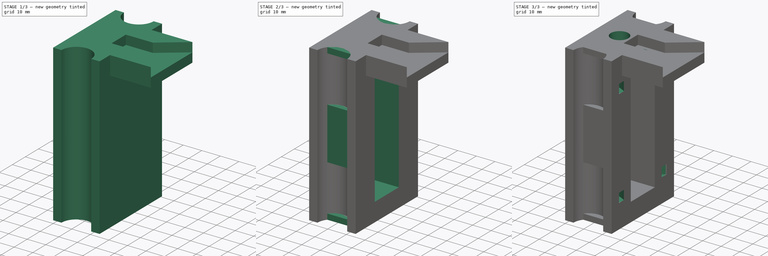
[diagram: build sequence overview — one tinted view per stage of 3, left to right]
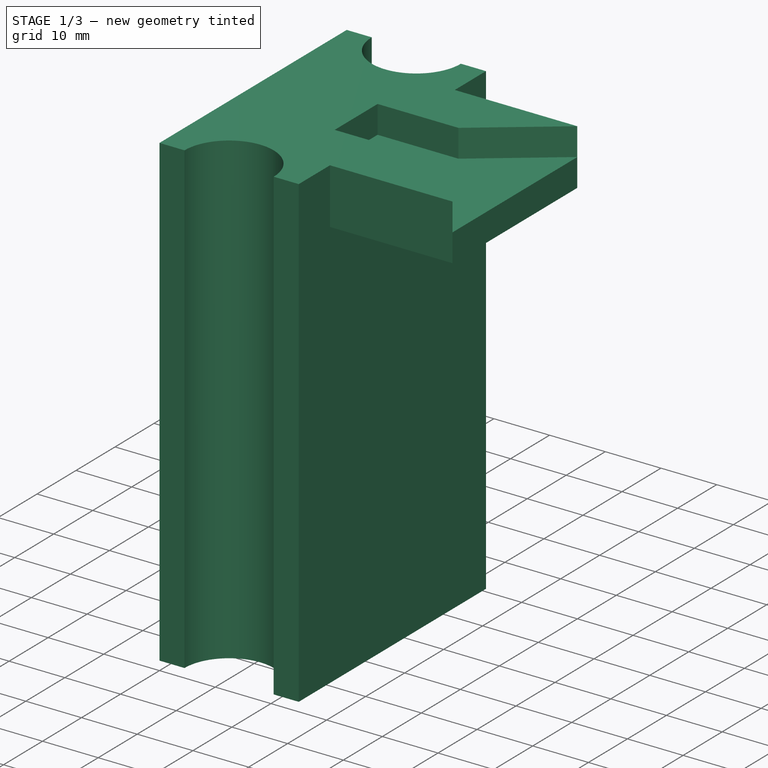
[diagram: stage 1 of 3 — iso view after this stage's code; geometry added in this stage tinted green]
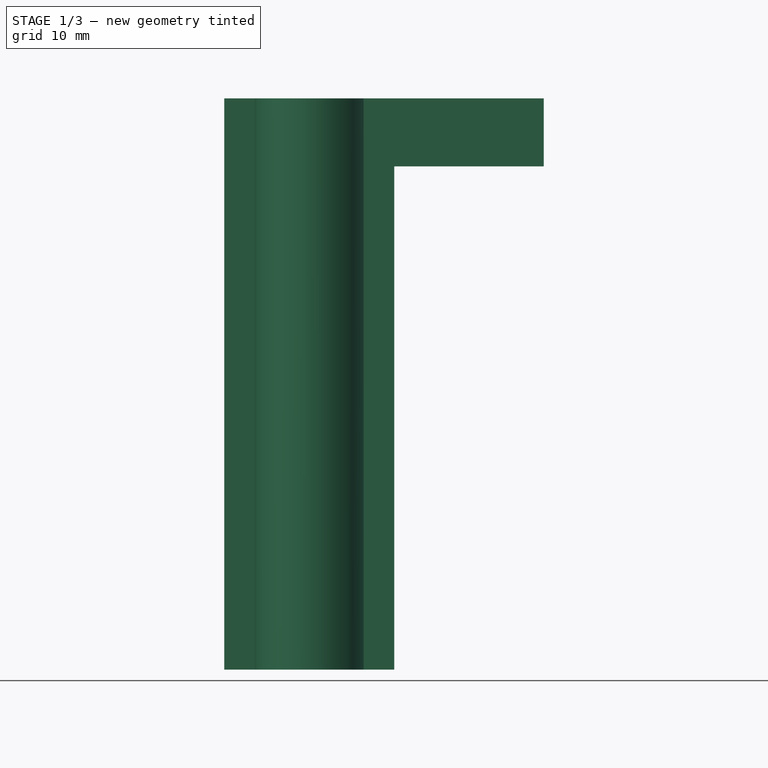
[diagram: stage 1 of 3 — front view after this stage's code; geometry added in this stage tinted green]
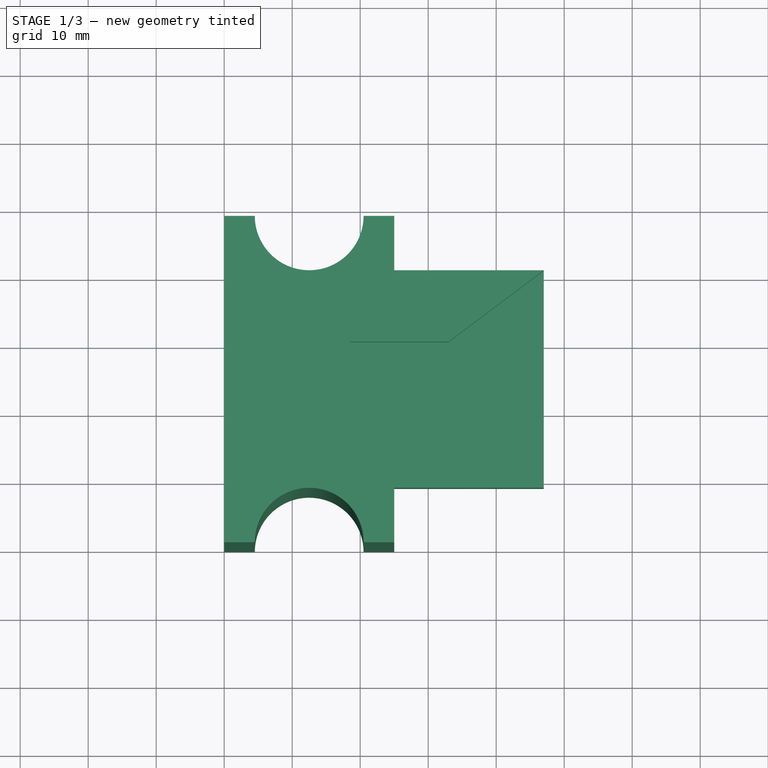
[diagram: stage 1 of 3 — top view after this stage's code; geometry added in this stage tinted green]
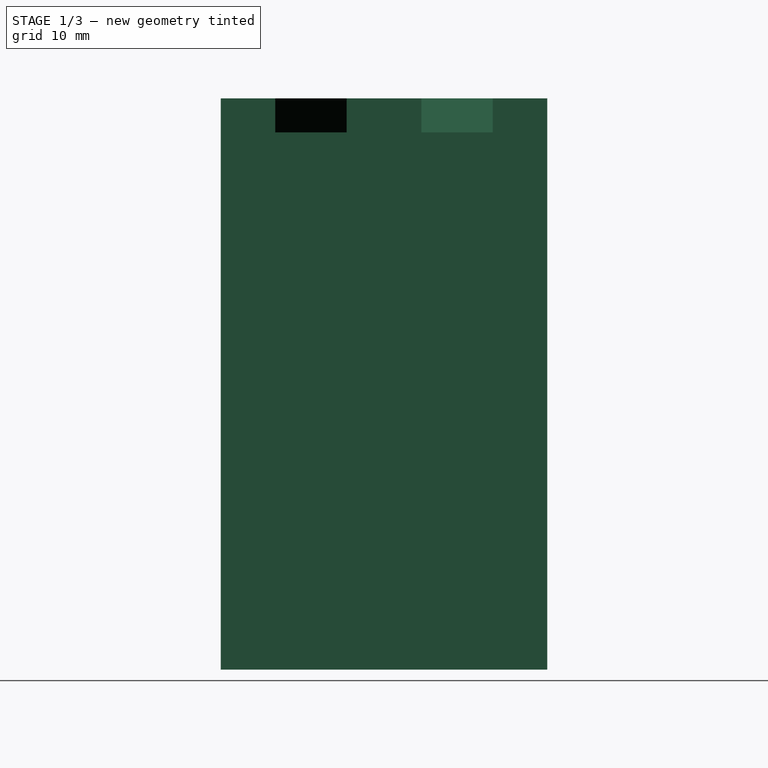
[diagram: stage 1 of 3 — right view after this stage's code; geometry added in this stage tinted green]
FCSTD DOCUMENT  (FreeCAD 0.16R5231 (Git))
Label: BuildPlatformMountingP3
License: All rights reserved
LicenseURL: http://en.wikipedia.org/wiki/All_rights_reserved
objects: Sketcher::SketchObject×7, PartDesign::Pocket×5, PartDesign::Pad×2, Part::Feature×1, Part::Cut×1
note: 23 computed .brp shape members not serialized (recipe doc carries the construction recipe); baked Part::Feature solids carry a one-line shape summary decoded from their .brp

FEATURE [Sketcher::SketchObject] Sketch
  sketch-geometry (13):
    g0: LineSegment StartX=25 StartY=40 StartZ=0 EndX=47 EndY=40 EndZ=0
    g1: LineSegment StartX=47 StartY=40 StartZ=0 EndX=47 EndY=8 EndZ=0
    g2: LineSegment StartX=47 StartY=8 StartZ=0 EndX=25 EndY=8 EndZ=0
    g3: ArcOfCircle CenterX=12.5 CenterY=0 CenterZ=0 NormalX=0 NormalY=0 NormalZ=1 Radius=8 StartAngle=0 EndAngle=3.14159
    g4: ArcOfCircle CenterX=12.5 CenterY=48 CenterZ=0 NormalX=0 NormalY=0 NormalZ=1 Radius=8 StartAngle=3.14159 EndAngle=6.28319
    g5: LineSegment StartX=20.5 StartY=0 StartZ=0 EndX=25 EndY=0 EndZ=0
    g6: LineSegment StartX=4.5 StartY=0 StartZ=0 EndX=0 EndY=0 EndZ=0
    g7: LineSegment StartX=4.5 StartY=48 StartZ=0 EndX=0 EndY=48 EndZ=0
    g8: LineSegment StartX=25 StartY=8 StartZ=0 EndX=25 EndY=0 EndZ=0
    g9: LineSegment StartX=20.5 StartY=48 StartZ=0 EndX=25 EndY=48 EndZ=0
    g10: LineSegment StartX=25 StartY=48 StartZ=0 EndX=25 EndY=40 EndZ=0
    g11: LineSegment StartX=0 StartY=48 StartZ=0 EndX=0 EndY=0 EndZ=0
    g12: LineSegment [constr] StartX=25 StartY=40 StartZ=0 EndX=25 EndY=8 EndZ=0
  constraints (39):
    c: Equal(g3,g4)
    c: Radius(g3) = 8
    c: Coincident(g6,g11)
    c: Coincident(g3,g6)
    c: Coincident(g7,g11)
    c: Coincident(g4,g7)
    c: Coincident(g4,g9)
    c: Coincident(g9,g10)
    c: Coincident(g0,g10)
    c: Coincident(g0,g1)
    c: Coincident(g1,g2)
    c: Coincident(g2,g8)
    c: Coincident(g5,g8)
    c: Coincident(g3,g5)
    c: DistanceY(g1) = -32
    c: DistanceX(g2) = -22
    c: Coincident(g12,g0)
    c: Coincident(g12,g2)
    c: Vertical(g12)
    c: Vertical(g11)
    c: Vertical(g1)
    c: Horizontal(g0)
    c: Horizontal(g2)
    c: Horizontal(g6)
    c: Horizontal(g5)
    c: Horizontal(g7)
    c: Horizontal(g9)
    c: Perpendicular(g3,g5)
    c: Perpendicular(g3,g6)
    c: Perpendicular(g4,g7)
    c: Perpendicular(g4,g9)
    c: Tangent(g4,g0)
    c: Tangent(g3,g2)
    c: DistanceX(g6,g5) = 25
    c: Equal(g5,g7)
    c: Equal(g7,g9)
    c: Equal(g9,g6)
    c: Vertical(g8)
    c: Coincident(g6,g-1)
FEATURE [PartDesign::Pad] Pad
  Length = 84
  Length2 = 100
  Sketch = -> Sketch
  Type = 0
FEATURE [Sketcher::SketchObject] Sketch001
  ExternalGeometry = -> [Pad]
  Placement = pos=(0,0,0) rot=(1,0,0;3.14159rad)
  Support = -> Pad [Face13]
  sketch-geometry (4):
    g0: LineSegment StartX=25 StartY=-40 StartZ=0 EndX=47 EndY=-40 EndZ=0
    g1: LineSegment StartX=47 StartY=-40 StartZ=0 EndX=47 EndY=-8 EndZ=0
    g2: LineSegment StartX=47 StartY=-8 StartZ=0 EndX=25 EndY=-8 EndZ=0
    g3: LineSegment StartX=25 StartY=-8 StartZ=0 EndX=25 EndY=-40 EndZ=0
  constraints (10):
    c: Coincident(g0,g1)
    c: Coincident(g1,g2)
    c: Coincident(g2,g3)
    c: Coincident(g3,g0)
    c: Horizontal(g0)
    c: Horizontal(g2)
    c: Vertical(g1)
    c: Vertical(g3)
    c: Coincident(g0,g-3)
    c: Coincident(g1,g-4)
FEATURE [Part::Feature] Fusion002001  label="Fusion003"
  shape: bbox 38.17 x 51 x 58 mm, 24 faces, 4 solids (baked)
FEATURE [PartDesign::Pocket] Pocket
  Length = 74
  Sketch = -> Sketch001
  Type = 0
FEATURE [Sketcher::SketchObject] Sketch002
  ExternalGeometry = -> [Pocket]
  Placement = pos=(0,0,84) rot=(0,0,1;0rad)
  Support = -> Pocket [Face5]
  sketch-geometry (8):
    g0: LineSegment StartX=47 StartY=8 StartZ=0 EndX=33.0001 EndY=18.5 EndZ=0
    g1: LineSegment StartX=47 StartY=40 StartZ=0 EndX=33.0001 EndY=29.5 EndZ=0
    g2: LineSegment [constr] StartX=33.0001 StartY=29.5 StartZ=0 EndX=33.0001 EndY=18.5 EndZ=0
    g3: LineSegment StartX=47 StartY=8 StartZ=0 EndX=47 EndY=40 EndZ=0
    g4: LineSegment [constr] StartX=12.5 StartY=0 StartZ=0 EndX=12.5 EndY=48 EndZ=0
    g5: LineSegment StartX=18.5 StartY=29.5 StartZ=0 EndX=33.0001 EndY=29.5 EndZ=0
    g6: LineSegment StartX=33.0001 StartY=18.5 StartZ=0 EndX=18.5 EndY=18.5 EndZ=0
    g7: LineSegment StartX=18.5 StartY=18.5 StartZ=0 EndX=18.5 EndY=29.5 EndZ=0
  constraints (20):
    c: Coincident(g2,g1)
    c: Coincident(g2,g0)
    c: Vertical(g2)
    c: DistanceY(g2) = -11
    c: Coincident(g3,g0)
    c: Coincident(g3,g1)
    c: Coincident(g4,g-5)
    c: Coincident(g4,g-6)
    c: Coincident(g7,g5)
    c: Horizontal(g5)
    c: Horizontal(g6)
    c: Vertical(g7)
    c: Angle(g3,g0) = 0.927293
    c: Angle(g1,g3) = 0.927293
    c: Coincident(g0,g-4)
    c: Coincident(g1,g-3)
    c: Coincident(g6,g0)
    c: Coincident(g5,g1)
    c: Coincident(g6,g7)
    c: DistanceX(g4,g6) = 6
FEATURE [PartDesign::Pocket] Pocket001
  Length = 5
  Sketch = -> Sketch002
  Type = 0
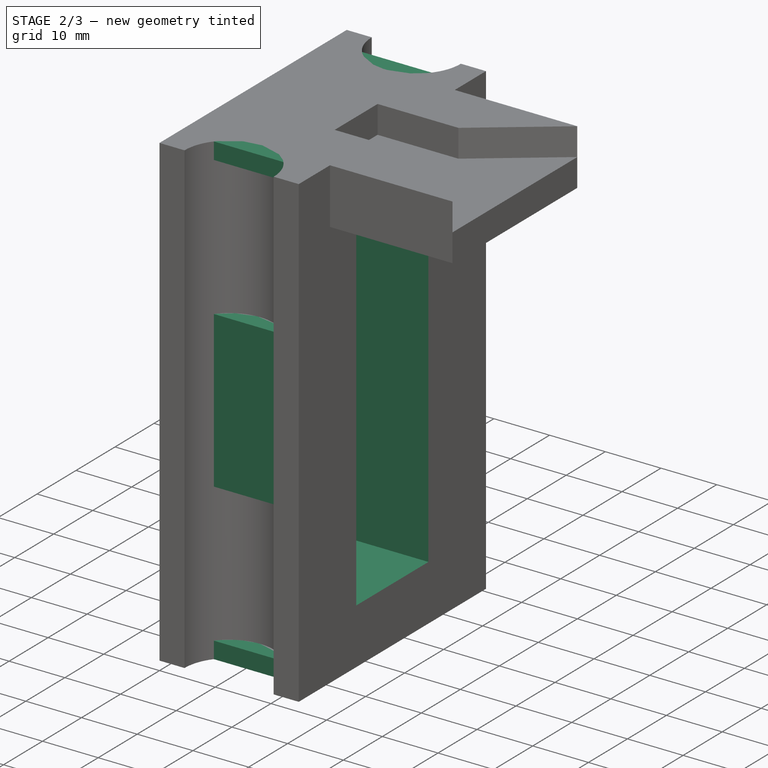
[diagram: stage 2 of 3 — iso view after this stage's code; geometry added in this stage tinted green]
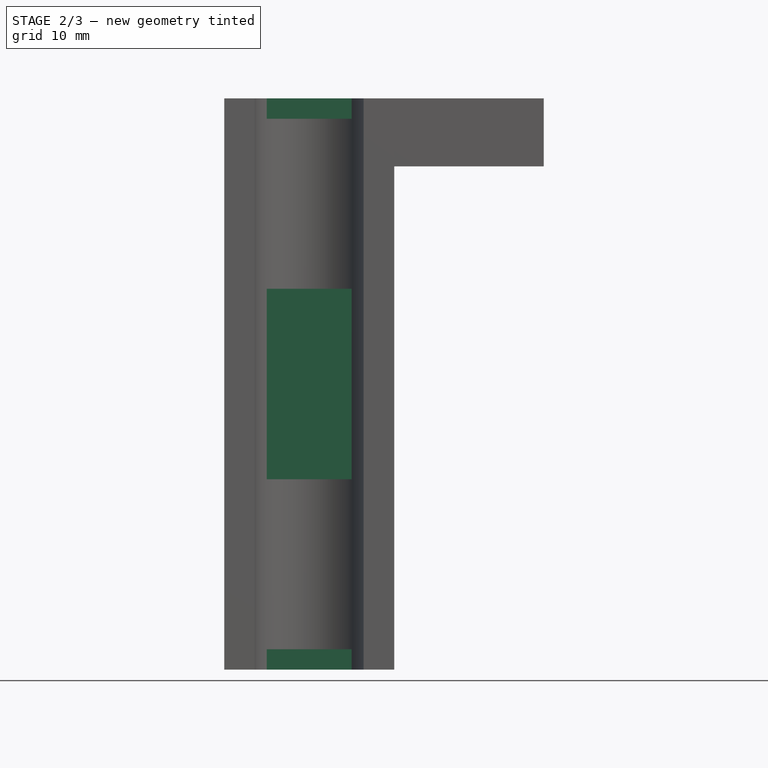
[diagram: stage 2 of 3 — front view after this stage's code; geometry added in this stage tinted green]
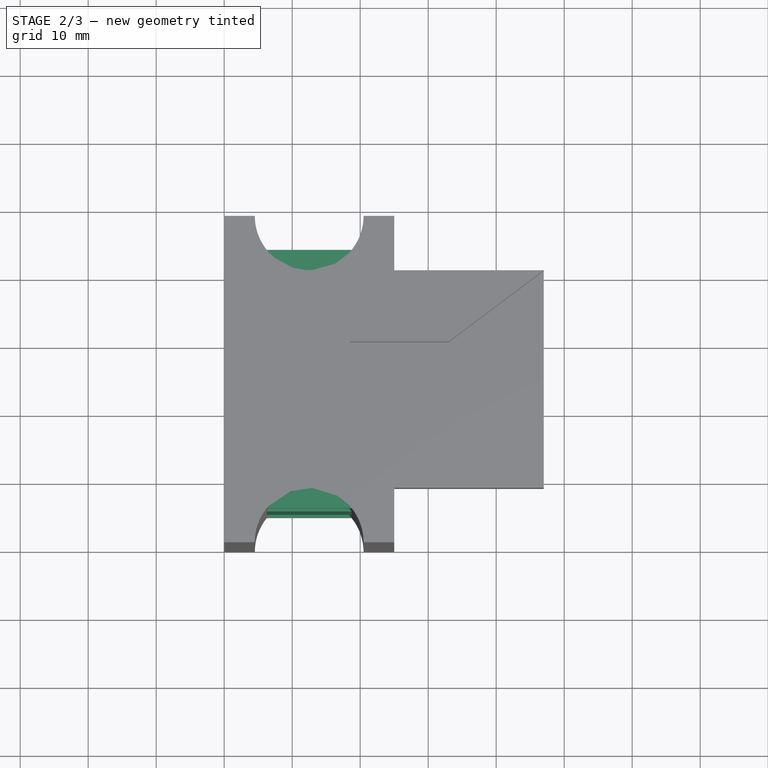
[diagram: stage 2 of 3 — top view after this stage's code; geometry added in this stage tinted green]
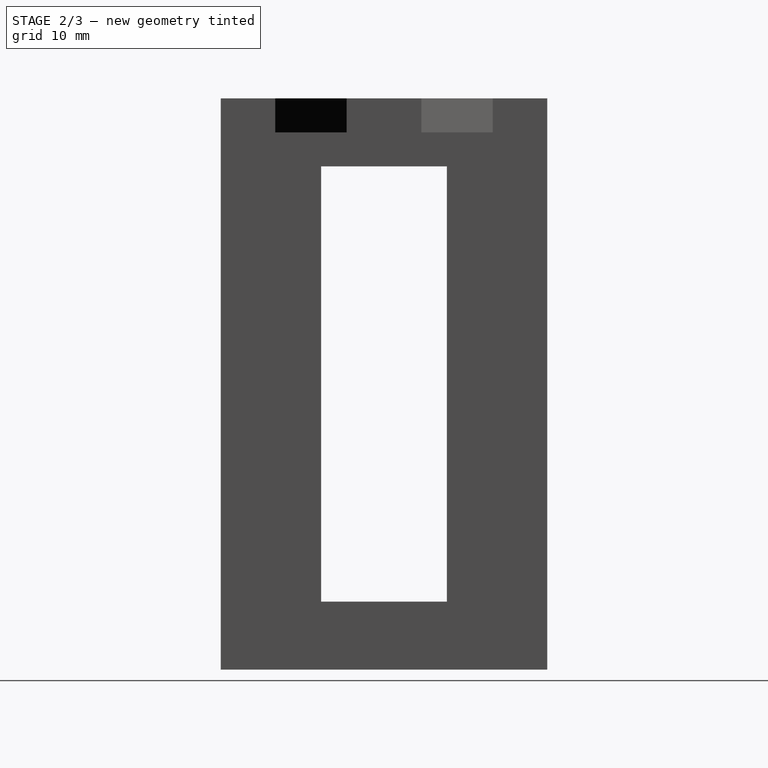
[diagram: stage 2 of 3 — right view after this stage's code; geometry added in this stage tinted green]
FEATURE [Sketcher::SketchObject] Sketch003
  ExternalGeometry = -> [Pocket001]
  Placement = pos=(0,0,0) rot=(0.57735,-0.57735,-0.57735;2.0944rad)
  Support = -> Pocket001 [Face6]
  sketch-geometry (5):
    g0: LineSegment StartX=-33.25 StartY=74 StartZ=0 EndX=-14.75 EndY=74 EndZ=0
    g1: LineSegment StartX=-14.75 StartY=74 StartZ=0 EndX=-14.75 EndY=10 EndZ=0
    g2: LineSegment StartX=-14.75 StartY=10 StartZ=0 EndX=-33.25 EndY=10 EndZ=0
    g3: LineSegment StartX=-33.25 StartY=10 StartZ=0 EndX=-33.25 EndY=74 EndZ=0
    g4: LineSegment [constr] StartX=-24 StartY=84 StartZ=0 EndX=-24 EndY=0 EndZ=0
  constraints (15):
    c: Coincident(g0,g1)
    c: Coincident(g1,g2)
    c: Coincident(g2,g3)
    c: Coincident(g3,g0)
    c: Horizontal(g0)
    c: Horizontal(g2)
    c: Vertical(g1)
    c: Vertical(g3)
    c: Vertical(g4)
    c: Symmetric(g0,g0,g4)
    c: DistanceX(g2) = -18.5
    c: DistanceY(g-1,g1) = 10
    c: Symmetric(g-3,g-3,g4)
    c: PointOnObject(g4,g-4)
    c: DistanceY(g0,g-3) = 10
FEATURE [PartDesign::Pocket] Pocket002
  Length = 25
  Sketch = -> Sketch003
  Type = 0
FEATURE [Sketcher::SketchObject] Sketch005
  ExternalGeometry = -> [Pocket002]
  Placement = pos=(0,0,0) rot=(0.57735,-0.57735,-0.57735;2.0944rad)
  Support = -> Pocket002 [Face6]
  sketch-geometry (27):
    g0: LineSegment [constr] StartX=-8 StartY=84 StartZ=0 EndX=-8 EndY=0 EndZ=0
    g1: LineSegment [constr] StartX=-40 StartY=84 StartZ=0 EndX=-40 EndY=0 EndZ=0
    g2: LineSegment StartX=-8 StartY=84 StartZ=0 EndX=-5 EndY=84 EndZ=0
    g3: LineSegment StartX=-5 StartY=84 StartZ=0 EndX=-5 EndY=81 EndZ=0
    g4: LineSegment StartX=-5 StartY=81 StartZ=0 EndX=-8 EndY=81 EndZ=0
    g5: LineSegment StartX=-8 StartY=81 StartZ=0 EndX=-8 EndY=84 EndZ=0
    g6: LineSegment StartX=-40 StartY=84 StartZ=0 EndX=-43 EndY=84 EndZ=0
    g7: LineSegment StartX=-43 StartY=84 StartZ=0 EndX=-43 EndY=81 EndZ=0
    g8: LineSegment StartX=-43 StartY=81 StartZ=0 EndX=-40 EndY=81 EndZ=0
    g9: LineSegment StartX=-40 StartY=81 StartZ=0 EndX=-40 EndY=84 EndZ=0
    g10: LineSegment StartX=-8 StartY=56 StartZ=0 EndX=-5 EndY=56 EndZ=0
    g11: LineSegment StartX=-5 StartY=56 StartZ=0 EndX=-5 EndY=28 EndZ=0
    g12: LineSegment StartX=-5 StartY=28 StartZ=0 EndX=-8 EndY=28 EndZ=0
    g13: LineSegment StartX=-8 StartY=28 StartZ=0 EndX=-8 EndY=56 EndZ=0
    g14: LineSegment StartX=-8 StartY=0 StartZ=0 EndX=-5 EndY=0 EndZ=0
    g15: LineSegment StartX=-5 StartY=0 StartZ=0 EndX=-5 EndY=3 EndZ=0
    g16: LineSegment StartX=-5 StartY=3 StartZ=0 EndX=-8 EndY=3 EndZ=0
    g17: LineSegment StartX=-8 StartY=3 StartZ=0 EndX=-8 EndY=0 EndZ=0
    g18: LineSegment StartX=-40 StartY=0 StartZ=0 EndX=-43 EndY=0 EndZ=0
    g19: LineSegment StartX=-43 StartY=0 StartZ=0 EndX=-43 EndY=3 EndZ=0
    g20: LineSegment StartX=-43 StartY=3 StartZ=0 EndX=-40 EndY=3 EndZ=0
    g21: LineSegment StartX=-40 StartY=3 StartZ=0 EndX=-40 EndY=0 EndZ=0
    g22: LineSegment StartX=-40 StartY=56 StartZ=0 EndX=-43 EndY=56 EndZ=0
    g23: LineSegment StartX=-43 StartY=56 StartZ=0 EndX=-43 EndY=28 EndZ=0
    g24: LineSegment StartX=-43 StartY=28 StartZ=0 EndX=-40 EndY=28 EndZ=0
    g25: LineSegment StartX=-40 StartY=28 StartZ=0 EndX=-40 EndY=56 EndZ=0
    g26: LineSegment [constr] StartX=-40 StartY=42 StartZ=0 EndX=-8 EndY=42 EndZ=0
  constraints (77):
    c: Vertical(g0)
    c: Vertical(g1)
    c: Coincident(g2,g3)
    c: Coincident(g3,g4)
    c: Coincident(g4,g5)
    c: Coincident(g5,g2)
    c: Horizontal(g2)
    c: Horizontal(g4)
    c: Vertical(g3)
    c: Vertical(g5)
    c: Coincident(g2,g0)
    c: Coincident(g6,g7)
    c: Coincident(g7,g8)
    c: Coincident(g8,g9)
    c: Coincident(g9,g6)
    c: Horizontal(g6)
    c: Horizontal(g8)
    c: Vertical(g7)
    c: Vertical(g9)
    c: Coincident(g6,g1)
    c: Coincident(g10,g11)
    c: Coincident(g11,g12)
    c: Coincident(g12,g13)
    c: Coincident(g13,g10)
    c: Horizontal(g10)
    c: Horizontal(g12)
    c: Vertical(g11)
    c: Vertical(g13)
    c: PointOnObject(g10,g0)
    c: Coincident(g14,g15)
    c: Coincident(g15,g16)
    c: Coincident(g16,g17)
    c: Coincident(g17,g14)
    c: Horizontal(g14)
    c: Horizontal(g16)
    c: Vertical(g15)
    c: Vertical(g17)
    c: Coincident(g14,g0)
    c: Coincident(g18,g19)
    c: Coincident(g19,g20)
    c: Coincident(g20,g21)
    c: Coincident(g21,g18)
    c: Horizontal(g18)
    c: Horizontal(g20)
    c: Vertical(g19)
    c: Vertical(g21)
    c: Coincident(g18,g1)
    c: Coincident(g22,g23)
    c: Coincident(g23,g24)
    c: Coincident(g24,g25)
    c: Coincident(g25,g22)
    c: Horizontal(g22)
    c: Horizontal(g24)
    c: Vertical(g23)
    c: Vertical(g25)
    c: PointOnObject(g22,g1)
    c: Equal(g8,g4)
    c: Equal(g4,g22)
    c: Equal(g22,g10)
    c: Equal(g10,g20)
    c: Equal(g20,g16)
    c: Equal(g3,g15)
    c: Equal(g15,g19)
    c: Equal(g19,g7)
    c: DistanceY(g3) = -3
    c: DistanceY(g11) = -28
    c: Equal(g11,g23)
    c: PointOnObject(g26,g1)
    c: PointOnObject(g26,g0)
    c: Symmetric(g0,g0,g26)
    c: Symmetric(g10,g11,g26)
    c: DistanceX(g2) = 3
    c: Symmetric(g22,g24,g26)
    c: Coincident(g0,g-3)
    c: Coincident(g1,g-4)
    c: PointOnObject(g1,g-5)
    c: PointOnObject(g0,g-5)
FEATURE [PartDesign::Pad] Pad001
  Length = 25
  Length2 = 100
  Reversed = true
  Sketch = -> Sketch005
  Type = 0
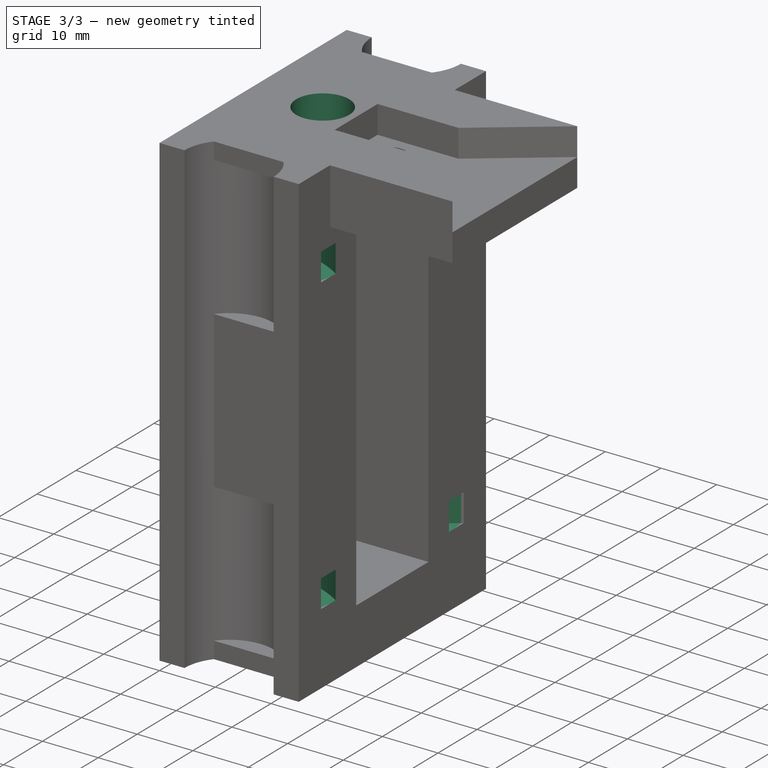
[diagram: stage 3 of 3 — iso view after this stage's code; geometry added in this stage tinted green]
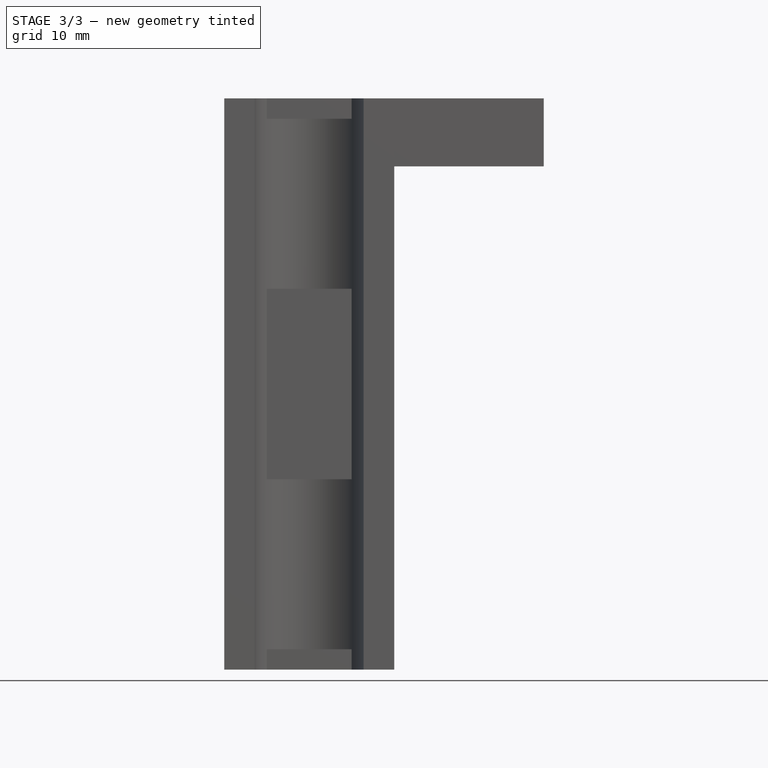
[diagram: stage 3 of 3 — front view after this stage's code; geometry added in this stage tinted green]
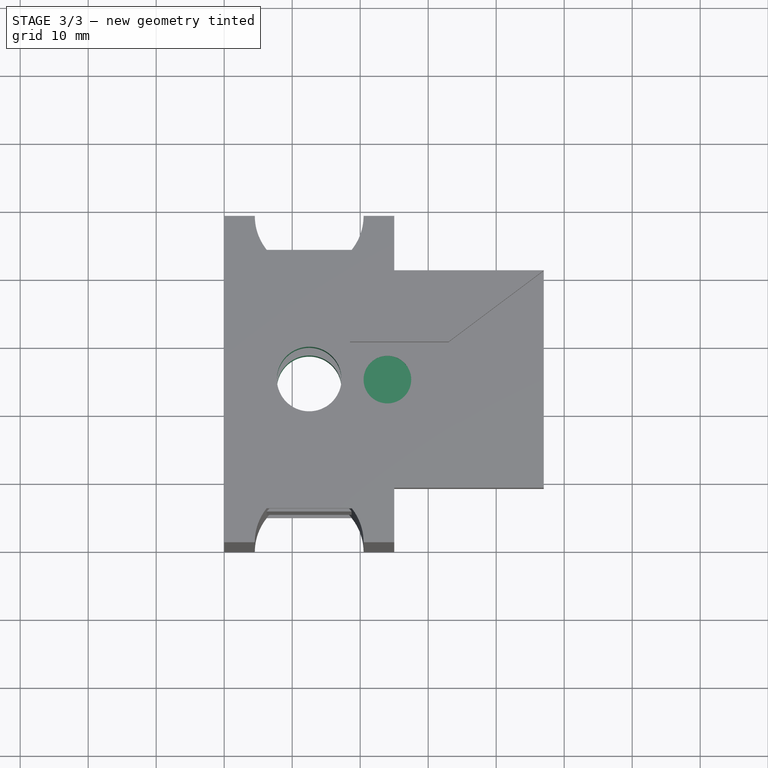
[diagram: stage 3 of 3 — top view after this stage's code; geometry added in this stage tinted green]
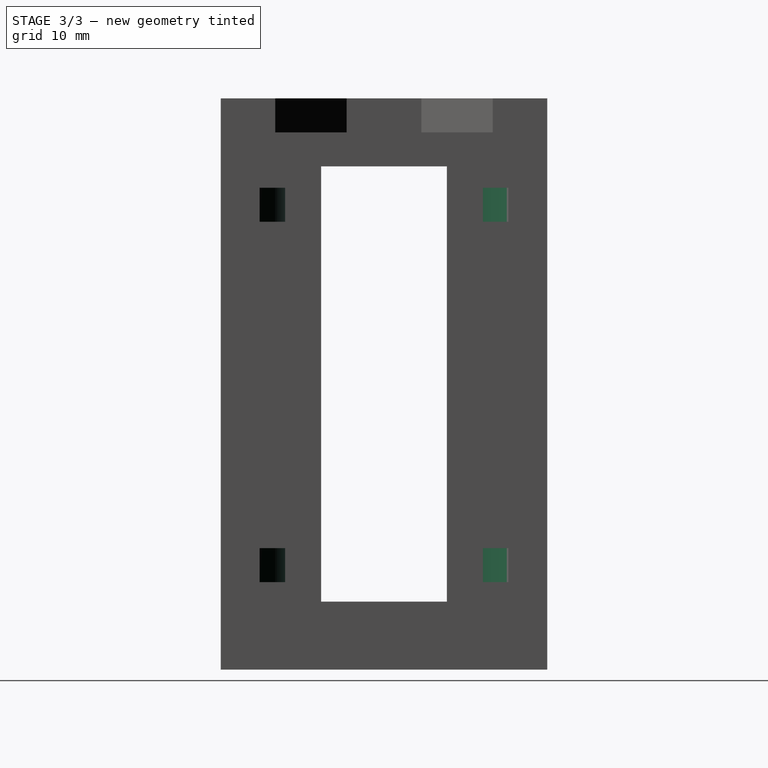
[diagram: stage 3 of 3 — right view after this stage's code; geometry added in this stage tinted green]
FEATURE [Sketcher::SketchObject] Sketch006
  ExternalGeometry = -> [Pad001]
  Placement = pos=(0,0,0) rot=(1,0,0;3.14159rad)
  Support = -> Pad001 [Face28]
  sketch-geometry (2):
    g0: LineSegment [constr] StartX=25 StartY=-40 StartZ=0 EndX=0 EndY=-8 EndZ=0
    g1: Circle CenterX=12.5 CenterY=-24 CenterZ=0 NormalX=0 NormalY=0 NormalZ=1 Radius=4.75
  constraints (5):
    c: PointOnObject(g1,g0)
    c: Symmetric(g0,g0,g1)
    c: Radius(g1) = 4.75
    c: Coincident(g0,g-4)
    c: Coincident(g0,g-3)
FEATURE [PartDesign::Pocket] Pocket003
  Length = 5
  Sketch = -> Sketch006
  Type = 1
FEATURE [Sketcher::SketchObject] Sketch007
  ExternalGeometry = -> [Pocket003]
  Placement = pos=(0,0,79) rot=(0,0,1;0rad)
  Support = -> Pocket003 [Face57]
  sketch-geometry (2):
    g0: LineSegment [constr] StartX=18.5 StartY=24 StartZ=0 EndX=47 EndY=24 EndZ=0
    g1: Circle CenterX=24 CenterY=24 CenterZ=0 NormalX=0 NormalY=0 NormalZ=1 Radius=3.5
  constraints (7):
    c: PointOnObject(g0,g-3)
    c: PointOnObject(g0,g-4)
    c: Horizontal(g0)
    c: Symmetric(g-4,g-4,g0)
    c: PointOnObject(g1,g0)
    c: DistanceX(g1,g0) = 23
    c: Radius(g1) = 3.5
FEATURE [PartDesign::Pocket] Pocket004
  Length = 1
  Sketch = -> Sketch007
  Type = 0
FEATURE [Part::Cut] Cut  label="BuildPlatformMountingP3"
  Base = -> Pocket004
  Tool = -> Fusion002001
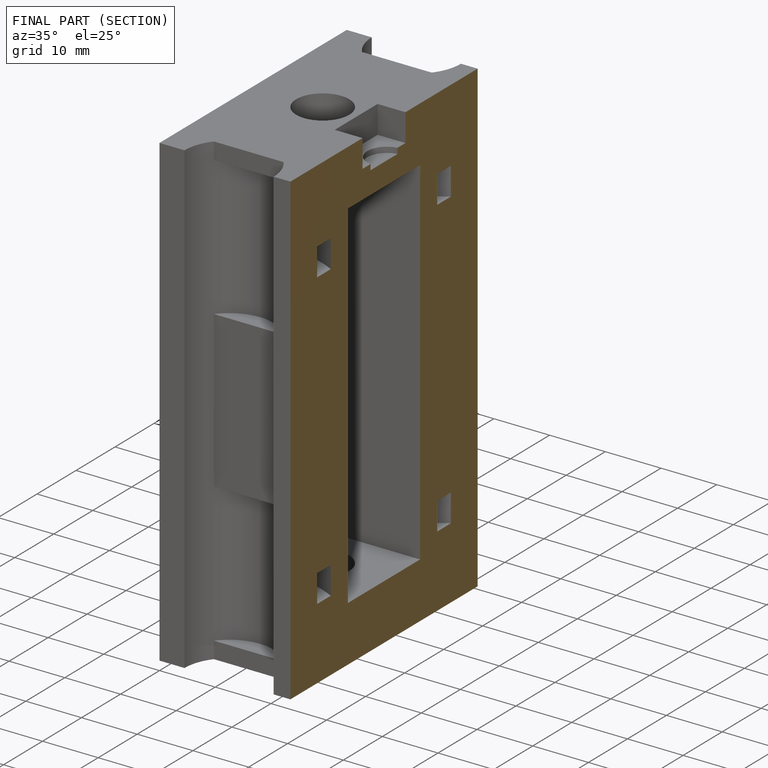
[diagram: finished part — half-section view (interior)]
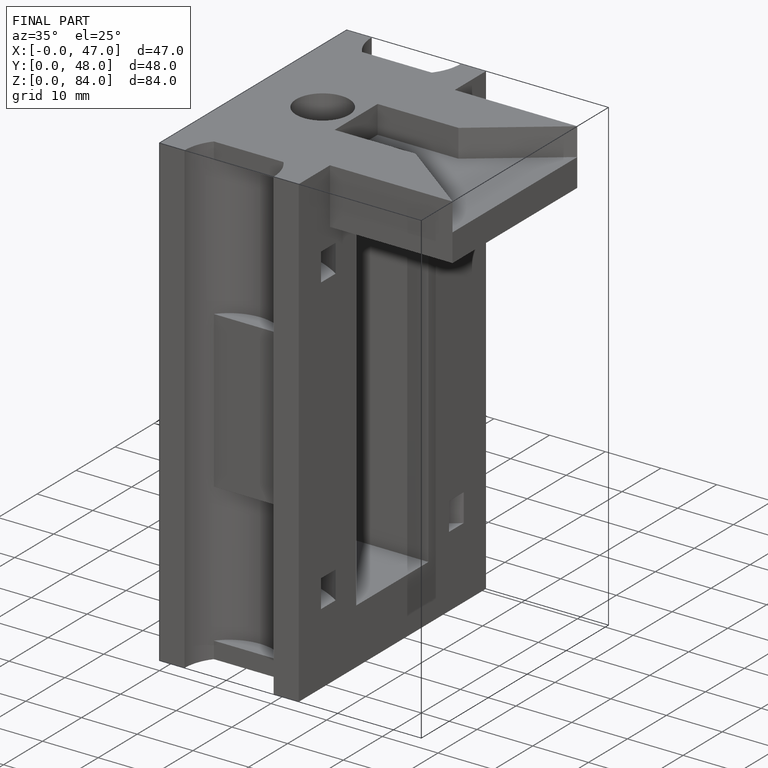
[diagram: finished part — iso view with bounding-box wireframe]
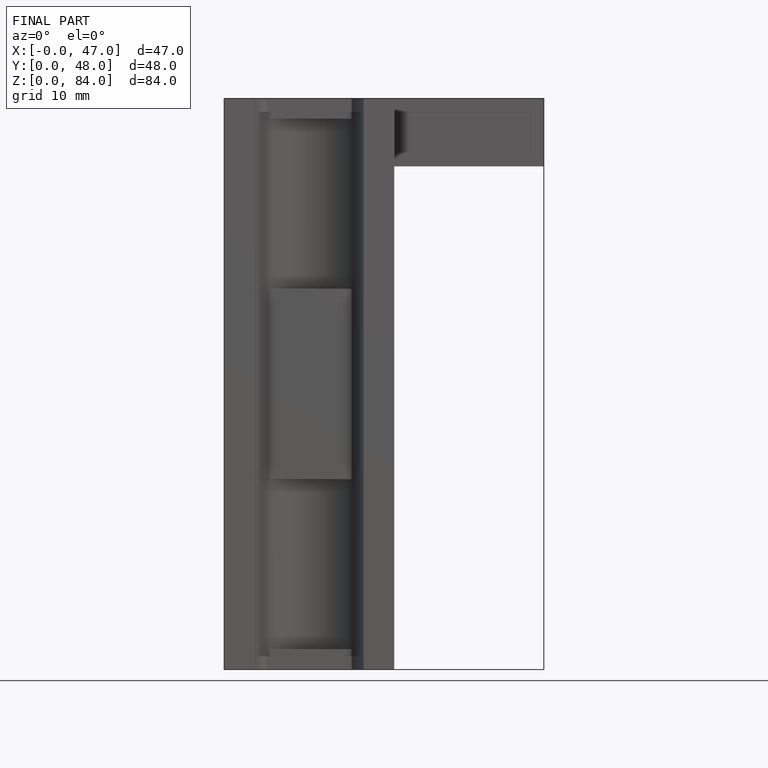
[diagram: finished part — front view with bounding-box wireframe]
